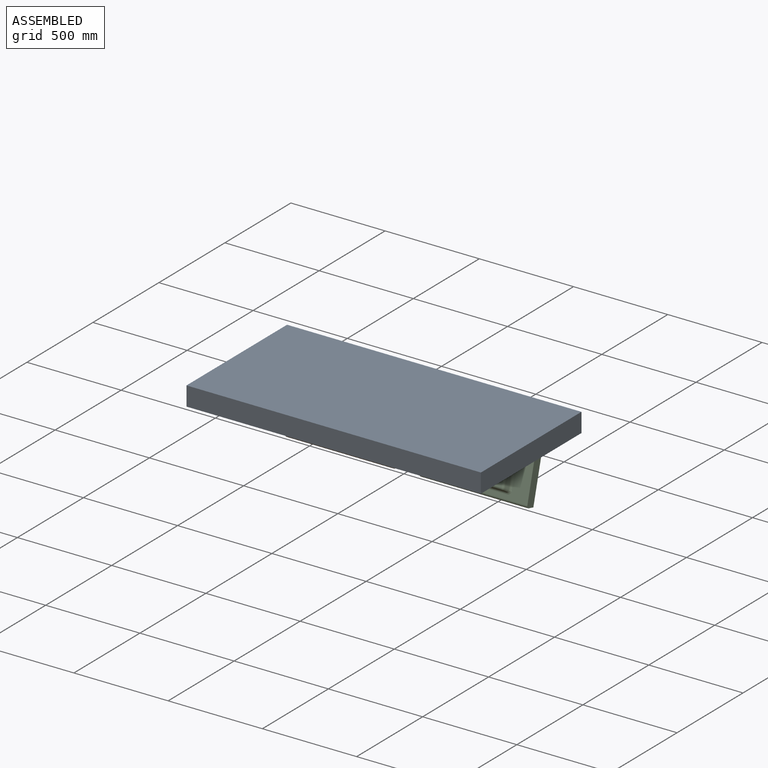
[diagram: assembled view]
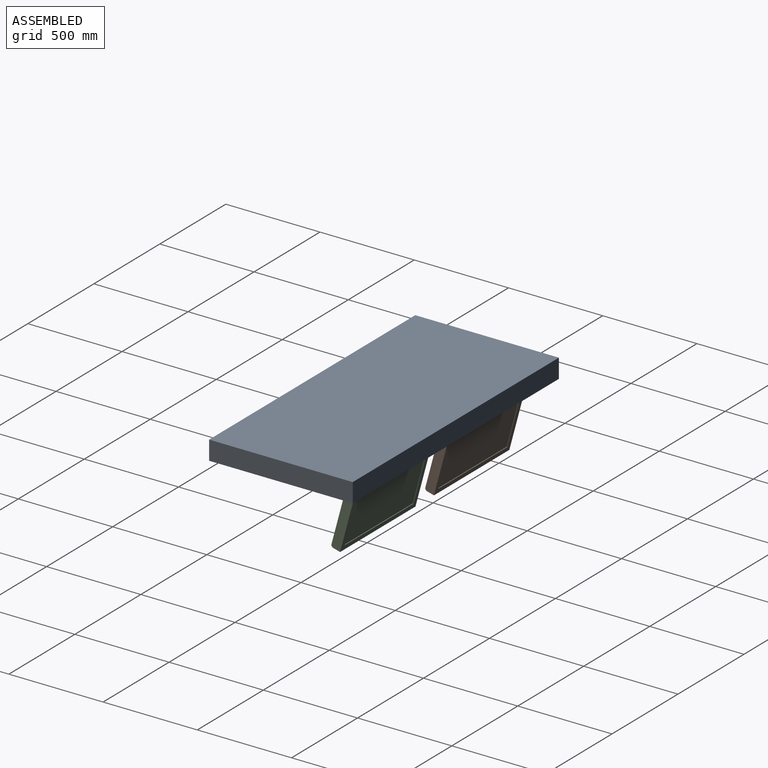
[diagram: assembled view, second angle]
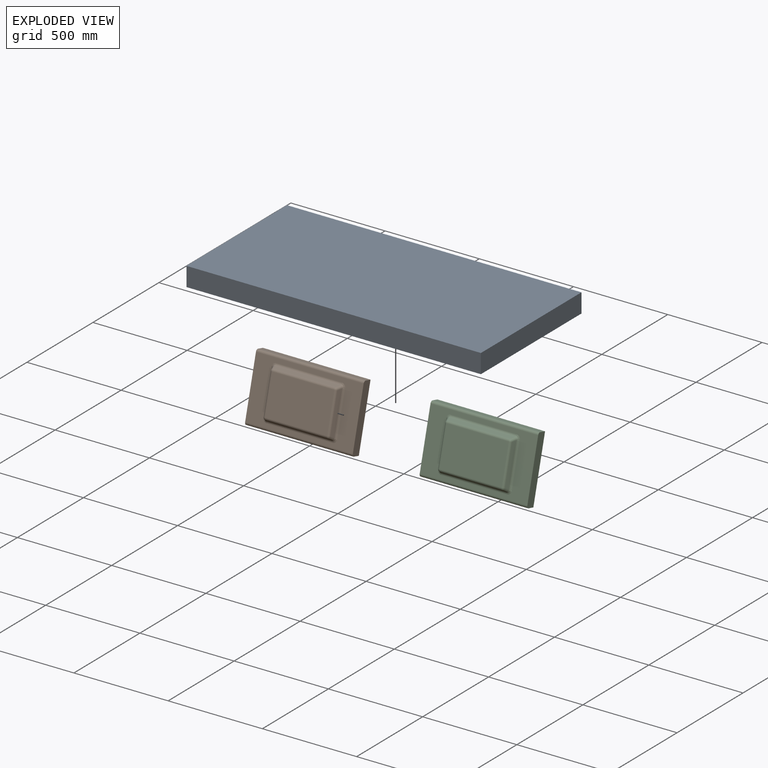
[diagram: exploded view]
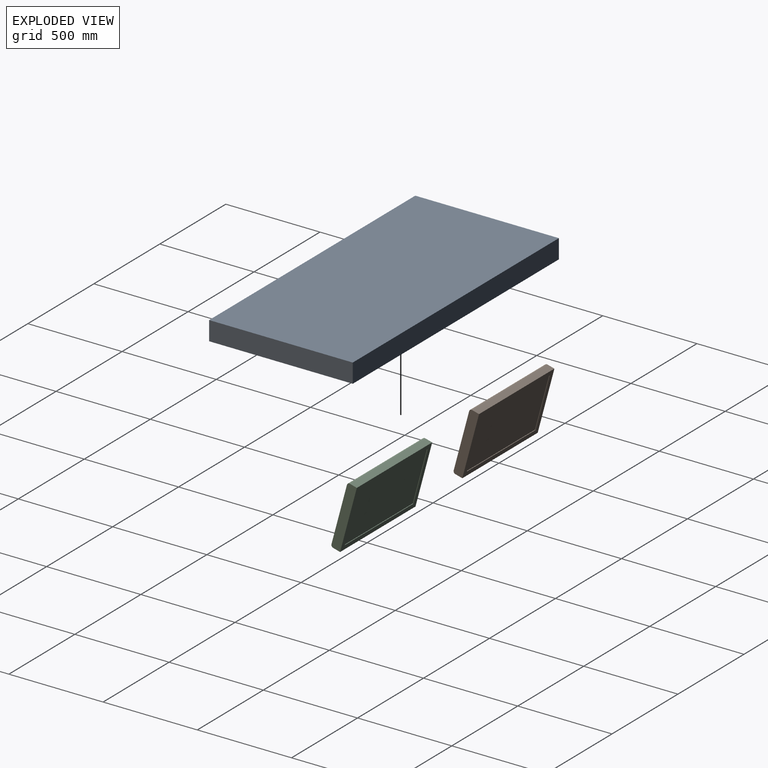
[diagram: exploded view, second angle]
ASSEMBLY  parts=3 mates=2
PART A: 16 faces, bbox 1562.1x762x101.6 mm
  f0: plane 762x101.6mm, normal (-1,0,0), area 77419.2mm2, adj f1,f3,f4,f5
  f1: plane 1562.1x101.6mm, normal (0,-1,0), area 158709.4mm2, adj f0,f2,f4,f5
  f2: plane 762x101.6mm, normal (1,0,0), area 77419.2mm2, adj f1,f3,f4,f5
  f3: plane 1562.1x101.6mm, normal (0,1,0), area 158709.4mm2, adj f0,f2,f4,f5
  f4: plane 1562.1x762mm, normal (0,0,1), area 1190320.2mm2, adj f0,f1,f2,f3
  f5: plane 1562.1x762mm, normal (0,0,-1), area 798385.5mm2, adj f0,f1,f2,f3,f6,f7,f8,f9
  f6: plane 342.9x91.44mm, normal (1,0,0), area 31354.8mm2, adj f5,f7,f9,f10
  f7: plane 571.5x91.44mm, normal (0,-1,0), area 52258mm2, adj f5,f6,f8,f10
  f8: plane 342.9x91.44mm, normal (-1,0,0), area 31354.8mm2, adj f5,f7,f9,f10
  f9: plane 571.5x91.44mm, normal (0,1,0), area 52258mm2, adj f5,f6,f8,f10
  f10: plane 571.5x342.9mm, normal (0,0,-1), area 195967.3mm2, adj f6,f7,f8,f9
  f11: plane 342.9x91.44mm, normal (1,0,0), area 31354.8mm2, adj f5,f12,f14,f15
  f12: plane 571.5x91.44mm, normal (0,-1,0), area 52258mm2, adj f5,f11,f13,f15
  f13: plane 342.9x91.44mm, normal (-1,0,0), area 31354.8mm2, adj f5,f12,f14,f15
  f14: plane 571.5x91.44mm, normal (0,1,0), area 52258mm2, adj f5,f11,f13,f15
  f15: plane 571.5x342.9mm, normal (0,0,-1), area 195967.3mm2, adj f11,f12,f13,f14
PART B: 38 faces, bbox 571.2x88.9x342.9 mm
  f0: plane 571.25x317.5mm, normal (0,-1,0), area 75183.7mm2, adj f1,f3,f13,f17,f18,f22,f23,f26
  f1: plane 342.9x50.8mm, normal (-1,0,0), area 17350.1mm2, adj f0,f2,f4,f5,f31,f32
  f2: plane 571.25x38.1mm, normal (0,0,-1), area 21764.5mm2, adj f1,f3,f5,f31
  f3: plane 342.9x50.8mm, normal (1,0,0), area 17350.1mm2, adj f0,f2,f4,f5,f31,f32
  f4: plane 571.25x38.1mm, normal (0,0,1), area 21764.5mm2, adj f1,f3,f5,f32
  f5: plane 571.25x342.9mm, normal (0,1,0), area 43858mm2, adj f1,f2,f3,f4,f33,f34,f35,f36
  f6: plane 224.05x21.39mm, normal (0.94,-0.34,0), area 4922.2mm2, adj f19,f24,f27,f30
  f7: plane 344.7x21.39mm, normal (0,-0.34,-0.94), area 7668.1mm2, adj f16,f25,f26,f30
  f8: plane 224.05x21.39mm, normal (-0.94,-0.34,0), area 4922.2mm2, adj f11,f15,f16,f17
  f9: plane 344.7x21.39mm, normal (0,-0.34,0.94), area 7668.1mm2, adj f11,f14,f18,f19
  f10: plane 329.13x208.48mm, normal (0,-1,0), area 68617.1mm2, adj f14,f15,f24,f25
  f11: cylinder r=12.7mm len=25.8mm, axis (-0.32,0.89,0.32), area 484.3mm2, adj f8,f9,f12,f13
  f12: sphere r=12.7mm, area 147mm2, adj f11,f14,f15
  f13: bspline ~23.87x23.87mm, area 398.2mm2, adj f0,f11,f17,f18
  f14: cylinder r=12.7mm len=329.13mm, axis (-1,0,0), area 5106.8mm2, adj f9,f10,f12,f20
  f15: cylinder r=12.7mm len=208.48mm, axis (0,0,-1), area 3234.8mm2, adj f8,f10,f12,f21
  f16: cylinder r=12.7mm len=25.8mm, axis (-0.32,0.89,-0.32), area 484.3mm2, adj f7,f8,f21,f22
  f17: cylinder r=12.7mm len=224.05mm, axis (0,0,-1), area 3476.3mm2, adj f0,f8,f13,f22
  f18: cylinder r=12.7mm len=344.7mm, axis (-1,0,0), area 5348.3mm2, adj f0,f9,f13,f23
  f19: cylinder r=12.7mm len=25.8mm, axis (0.32,0.89,0.32), area 484.3mm2, adj f6,f9,f20,f23
  f20: sphere r=12.7mm, area 147mm2, adj f14,f19,f24
  f21: sphere r=12.7mm, area 147mm2, adj f15,f16,f25
  f22: bspline ~23.87x23.87mm, area 398.2mm2, adj f0,f16,f17,f26
  f23: bspline ~23.87x23.87mm, area 398.2mm2, adj f0,f18,f19,f27
  f24: cylinder r=12.7mm len=208.48mm, axis (0,0,-1), area 3234.8mm2, adj f6,f10,f20,f28
  f25: cylinder r=12.7mm len=329.13mm, axis (-1,0,0), area 5106.8mm2, adj f7,f10,f21,f28
  f26: cylinder r=12.7mm len=344.7mm, axis (-1,0,0), area 5348.3mm2, adj f0,f7,f22,f29
  f27: cylinder r=12.7mm len=224.05mm, axis (0,0,-1), area 3476.3mm2, adj f0,f6,f23,f29
  f28: sphere r=12.7mm, area 147mm2, adj f24,f25,f30
  f29: bspline ~23.87x23.87mm, area 398.2mm2, adj f0,f26,f27,f30
  f30: cylinder r=12.7mm len=25.8mm, axis (0.32,0.89,-0.32), area 484.3mm2, adj f6,f7,f28,f29
  f31: cylinder r=12.7mm len=571.25mm, axis (-1,0,0), area 11395.9mm2, adj f0,f1,f2,f3
  f32: cylinder r=12.7mm len=571.25mm, axis (1,0,0), area 11395.9mm2, adj f0,f1,f3,f4
  f33: plane 292.1x3.18mm, normal (1,0,0), area 927.4mm2, adj f5,f34,f36,f37
  f34: plane 520.45x3.18mm, normal (0,0,1), area 1652.4mm2, adj f5,f33,f35,f37
  f35: plane 292.1x3.18mm, normal (-1,0,0), area 927.4mm2, adj f5,f34,f36,f37
  f36: plane 520.45x3.18mm, normal (0,0,-1), area 1652.4mm2, adj f5,f33,f35,f37
  f37: plane 520.45x292.1mm, normal (0,1,0), area 152022.3mm2, adj f33,f34,f35,f36
PART C: same geometry as B
PLACE A at identity fixed
PLACE B rot(axis=(-1,0,0),15deg) t=(-304.06,30.54,-163.96)mm
PLACE C rot(axis=(-1,0,0),15deg) t=(407.14,30.54,-163.96)mm
MATE revolute A.f13 <-> B.f3  axis (1,0,0) through (-18.44,81.05,0)mm
MATE revolute A.f8 <-> C.f3  axis (1,0,0) through (692.76,81.05,0)mm
